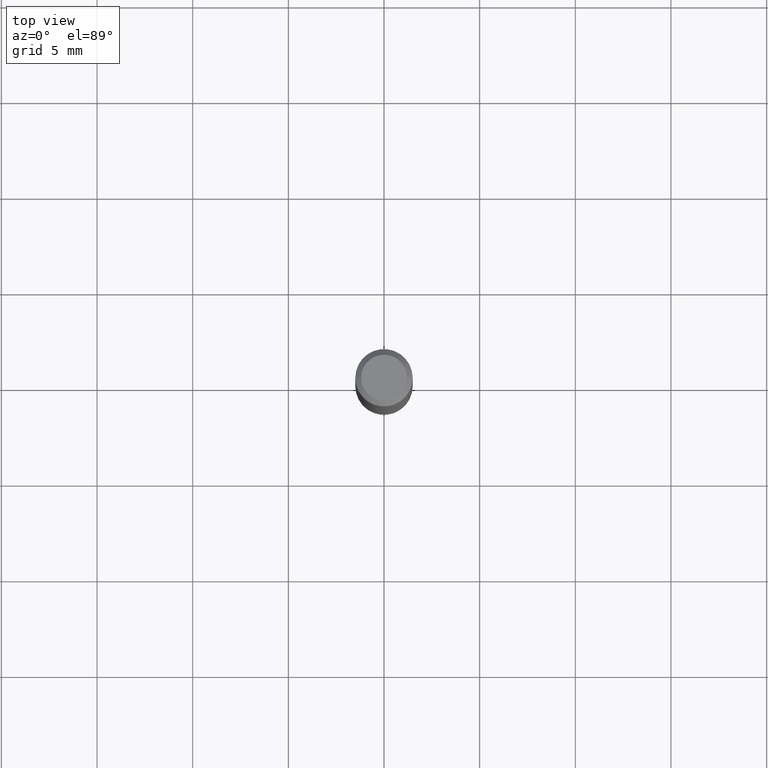
[diagram: clean part render]
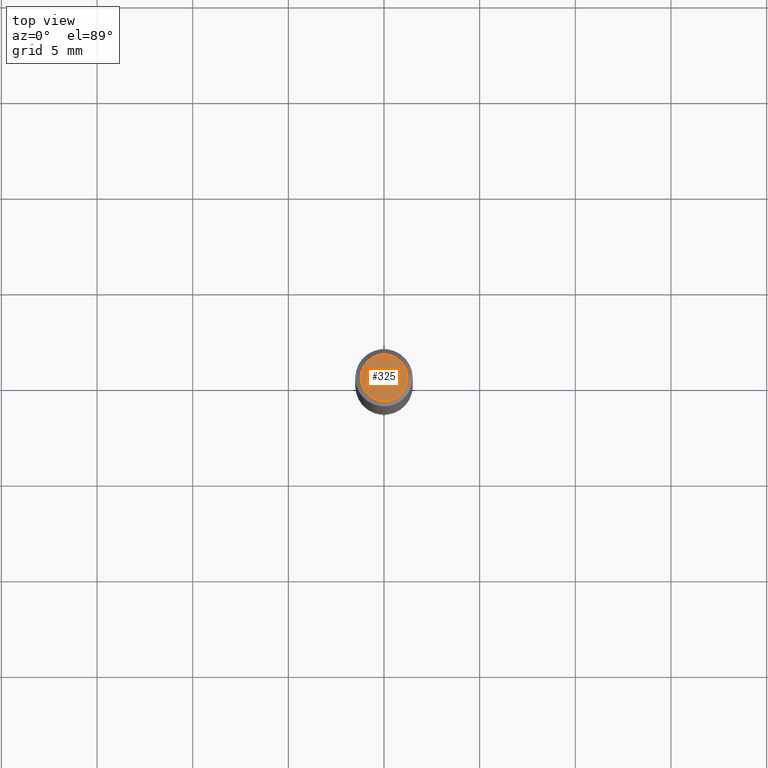
[diagram: same view with one face highlighted and labeled with its STEP entity id]
A machine part, top view. The second image highlights one B-rep face of the part: STEP entity #325.
In plain terms, the highlighted planar face has unit normal (0, -0, -1).
Its self-contained STEP definition (entity closure, byte-faithful):
#8 = ORIENTED_EDGE ( 'NONE', *, *, #10, .T. ) ;
#10 = EDGE_CURVE ( 'NONE', #433, #216, #476, .T. ) ;
#14 = ORIENTED_EDGE ( 'NONE', *, *, #221, .T. ) ;
#60 = AXIS2_PLACEMENT_3D ( 'NONE', #156, #307, #72 ) ;
#72 = DIRECTION ( 'NONE',  ( -1.000000000000000000, 6.982962677686265922E-15, -4.876176775795935793E-29 ) ) ;
#96 = AXIS2_PLACEMENT_3D ( 'NONE', #158, #346, #455 ) ;
#156 = CARTESIAN_POINT ( 'NONE',  ( 4.132873053354867254E-48, -5.900647395337818946E-34, -1.690012582823346072E-19 ) ) ;
#158 = CARTESIAN_POINT ( 'NONE',  ( 8.265746106709734507E-48, -1.180129479067563789E-33, -3.380025165646692144E-19 ) ) ;
#212 = CARTESIAN_POINT ( 'NONE',  ( 0.04724000000000000421, -3.852183633974369345E-16, -3.380025165621689721E-19 ) ) ;
#216 = VERTEX_POINT ( 'NONE', #308 ) ;
#221 = EDGE_CURVE ( 'NONE', #216, #433, #359, .T. ) ;
#262 = FACE_OUTER_BOUND ( 'NONE', #357, .T. ) ;
#269 = PLANE ( 'NONE',  #60 ) ;
#301 = CARTESIAN_POINT ( 'NONE',  ( 8.265746106709734507E-48, -1.180129479067563789E-33, -3.380025165646692144E-19 ) ) ;
#307 = DIRECTION ( 'NONE',  ( 2.438088387897960049E-29, -3.491481338843145188E-15, -1.000000000000000000 ) ) ;
#308 = CARTESIAN_POINT ( 'NONE',  ( -0.04724000000000000421, 3.504923541997677355E-16, -3.380025165670481712E-19 ) ) ;
#325 = ADVANCED_FACE ( 'NONE', ( #262 ), #269, .F. ) ;
#346 = DIRECTION ( 'NONE',  ( -2.445468806185136597E-29, 3.491481338843145583E-15, 1.000000000000000000 ) ) ;
#357 = EDGE_LOOP ( 'NONE', ( #14, #8 ) ) ;
#359 = CIRCLE ( 'NONE', #96, 0.04724000000000000421 ) ;
#403 = DIRECTION ( 'NONE',  ( 1.000000000000000000, -6.982962677686266711E-15, 4.876185090822587894E-29 ) ) ;
#432 = AXIS2_PLACEMENT_3D ( 'NONE', #301, #483, #403 ) ;
#433 = VERTEX_POINT ( 'NONE', #212 ) ;
#455 = DIRECTION ( 'NONE',  ( 1.000000000000000000, -6.982962677686266711E-15, 4.876185090822587894E-29 ) ) ;
#476 = CIRCLE ( 'NONE', #432, 0.04724000000000000421 ) ;
#483 = DIRECTION ( 'NONE',  ( -2.445468806185136597E-29, 3.491481338843145583E-15, 1.000000000000000000 ) ) ;